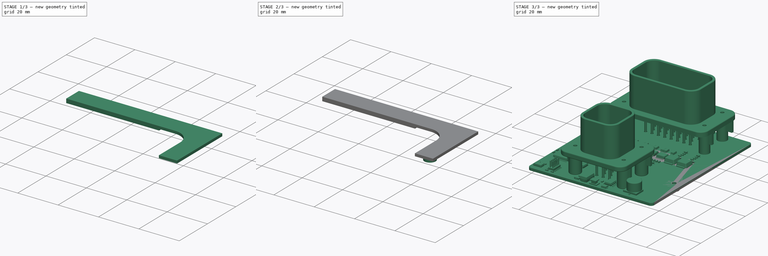
[diagram: build sequence overview — one tinted view per stage of 3, left to right]
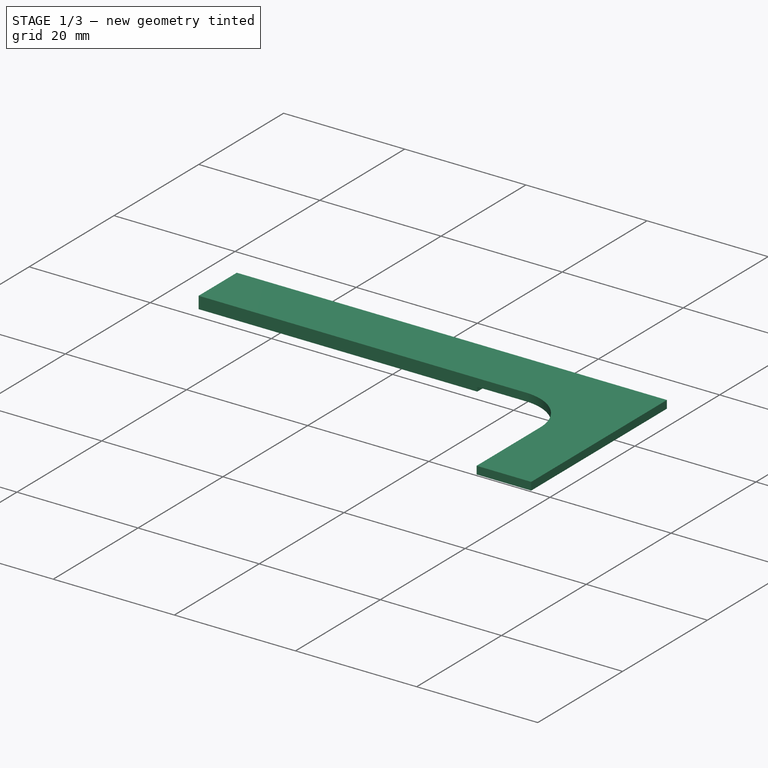
[diagram: stage 1 of 3 — iso view after this stage's code; geometry added in this stage tinted green]
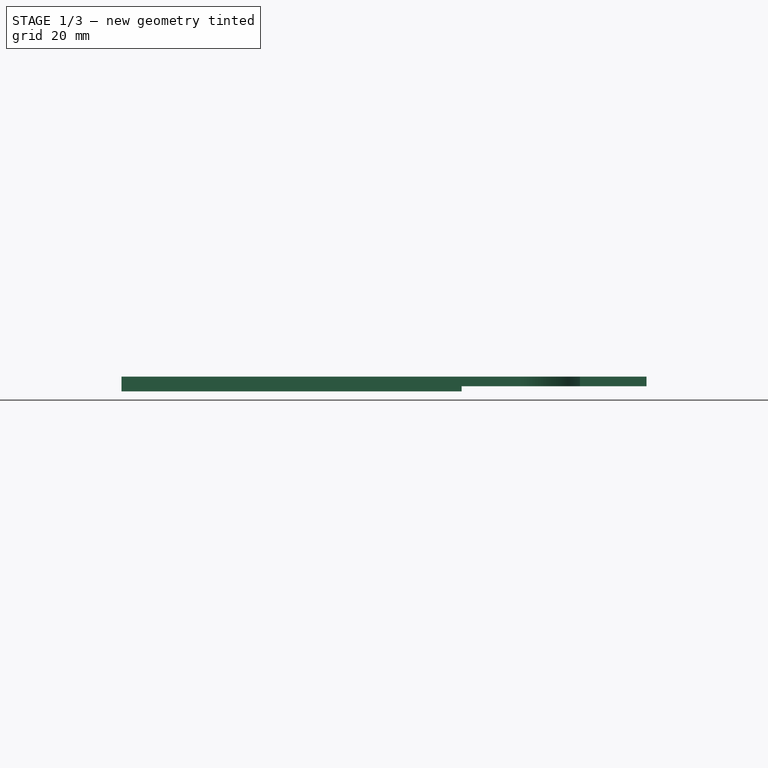
[diagram: stage 1 of 3 — front view after this stage's code; geometry added in this stage tinted green]
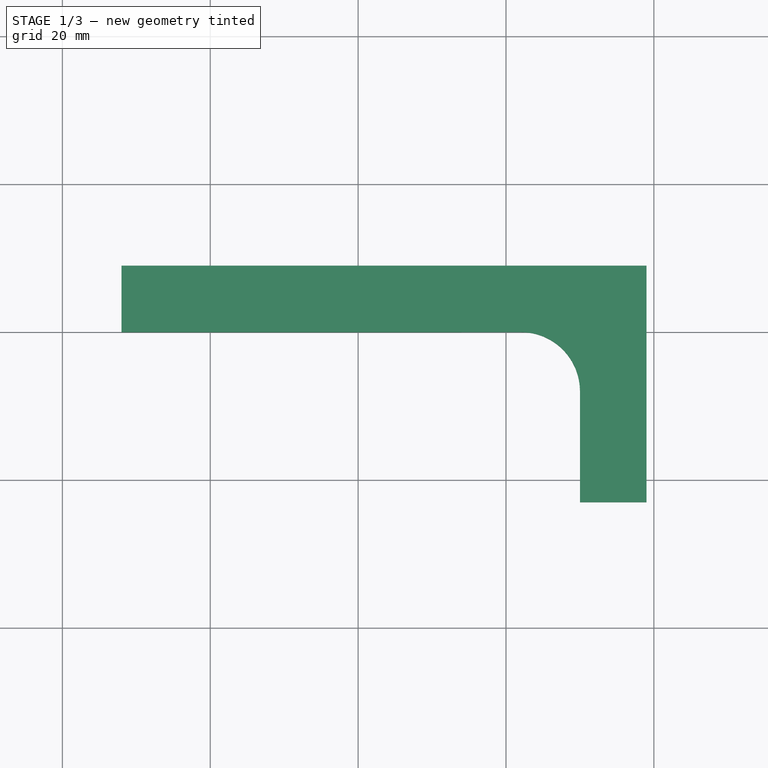
[diagram: stage 1 of 3 — top view after this stage's code; geometry added in this stage tinted green]
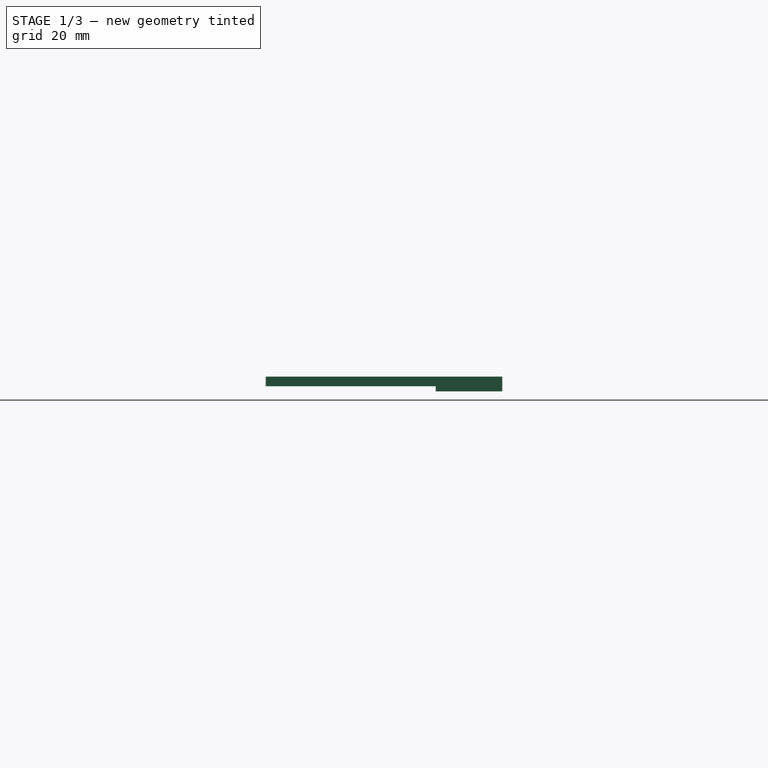
[diagram: stage 1 of 3 — right view after this stage's code; geometry added in this stage tinted green]
FCSTD DOCUMENT  (FreeCAD 0.17R13509 (Git))
Label: ccu_heatsink
License: All rights reserved
LicenseURL: http://en.wikipedia.org/wiki/All_rights_reserved
objects: Drawing::FeatureViewPython×16, Sketcher::SketchObject×4, Drawing::FeatureViewPart×4, PartDesign::Pad×2, PartDesign::Pocket×2, Part::FeaturePython×1, PartDesign::Body×1, Drawing::FeaturePage×1
note: 14 computed .brp shape members not serialized (recipe doc carries the construction recipe); baked Part::Feature solids carry a one-line shape summary decoded from their .brp

FEATURE [Sketcher::SketchObject] Sketch
  MapMode = 5
  Support = -> [XY_Plane]
  sketch-geometry (7):
    g0: LineSegment StartX=-32 StartY=0 StartZ=0 EndX=-32 EndY=9 EndZ=0
    g1: LineSegment StartX=-32 StartY=9 StartZ=0 EndX=39 EndY=9 EndZ=0
    g2: LineSegment StartX=39 StartY=9 StartZ=0 EndX=39 EndY=-23 EndZ=0
    g3: LineSegment StartX=39 StartY=-23 StartZ=0 EndX=30 EndY=-23 EndZ=0
    g4: LineSegment StartX=30 StartY=-23 StartZ=0 EndX=30 EndY=-8 EndZ=0
    g5: ArcOfCircle CenterX=22 CenterY=-8 CenterZ=0 NormalX=0 NormalY=0 NormalZ=1 AngleXU=0 Radius=8 StartAngle=0 EndAngle=1.5708
    g6: LineSegment StartX=22 StartY=0 StartZ=0 EndX=-32 EndY=0 EndZ=0
  constraints (20):
    c: PointOnObject(g0,g-1)
    c: Vertical(g0)
    c: Coincident(g0,g1)
    c: Horizontal(g1)
    c: Coincident(g1,g2)
    c: Vertical(g2)
    c: Coincident(g2,g3)
    c: Horizontal(g3)
    c: Coincident(g3,g4)
    c: Vertical(g4)
    c: Tangent(g4,g5) = -1.5708
    c: PointOnObject(g5,g-1)
    c: Coincident(g6,g0)
    c: DistanceX(g3,g3) = 9
    c: DistanceX(g-1,g2) = 39
    c: DistanceY(g2,g-1) = 23
    c: Radius(g5) = 8
    c: DistanceY(g0,g0) = 9
    c: DistanceX(g0,g-1) = 32
    c: Tangent(g5,g6) = -1.5708
FEATURE [PartDesign::Pad] Pad
  Length = 2
  Length2 = 100
  Profile = -> Sketch
  Reversed = true
  Type = 0
FEATURE [Sketcher::SketchObject] Sketch001
  ExternalGeometry = -> [Pad]
  MapMode = 5
  Placement = pos=(0,0,-2) rot=(1,0,0;3.14159rad)
  Support = -> [Pad]
  sketch-geometry (7):
    g0: LineSegment StartX=14 StartY=0 StartZ=0 EndX=14 EndY=-9 EndZ=0
    g1: LineSegment StartX=14 StartY=-9 StartZ=0 EndX=39 EndY=-9 EndZ=0
    g2: LineSegment StartX=39 StartY=-9 StartZ=0 EndX=39 EndY=23 EndZ=0
    g3: LineSegment StartX=39 StartY=23 StartZ=0 EndX=30 EndY=23 EndZ=0
    g4: LineSegment StartX=30 StartY=23 StartZ=0 EndX=30 EndY=8 EndZ=0
    g5: ArcOfCircle CenterX=22 CenterY=8 CenterZ=0 NormalX=0 NormalY=0 NormalZ=1 AngleXU=0 Radius=8 StartAngle=4.71239 EndAngle=6.28319
    g6: LineSegment StartX=22 StartY=0 StartZ=0 EndX=14 EndY=0 EndZ=0
  constraints (18):
    c: PointOnObject(g0,g-1)
    c: PointOnObject(g0,g-4)
    c: Vertical(g0)
    c: Coincident(g0,g1)
    c: Coincident(g1,g-4)
    c: Coincident(g1,g2)
    c: Vertical(g2)
    c: Coincident(g2,g3)
    c: Horizontal(g3)
    c: Coincident(g3,g4)
    c: Coincident(g4,g-3)
    c: Vertical(g4)
    c: Tangent(g4,g5) = 1.5708
    c: Coincident(g6,g0)
    c: Coincident(g3,g-5)
    c: Tangent(g5,g6) = 1.5708
    c: DistanceX(g0,g1) = 25
    c: Horizontal(g6)
FEATURE [PartDesign::Pocket] Pocket
  BaseFeature = -> Pad
  Length = 0.7
  Length2 = 100
  Profile = -> Sketch001
  Type = 0
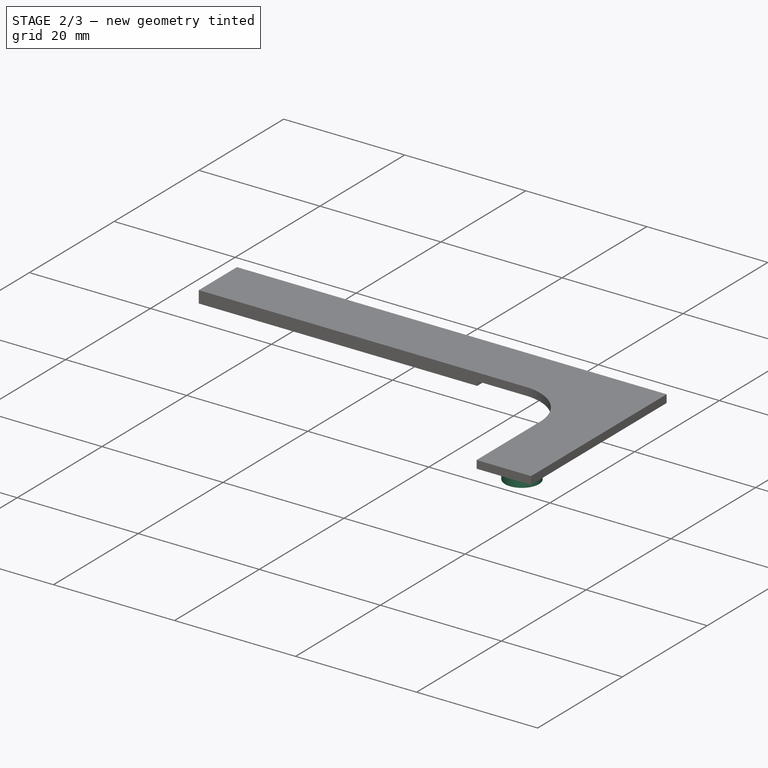
[diagram: stage 2 of 3 — iso view after this stage's code; geometry added in this stage tinted green]
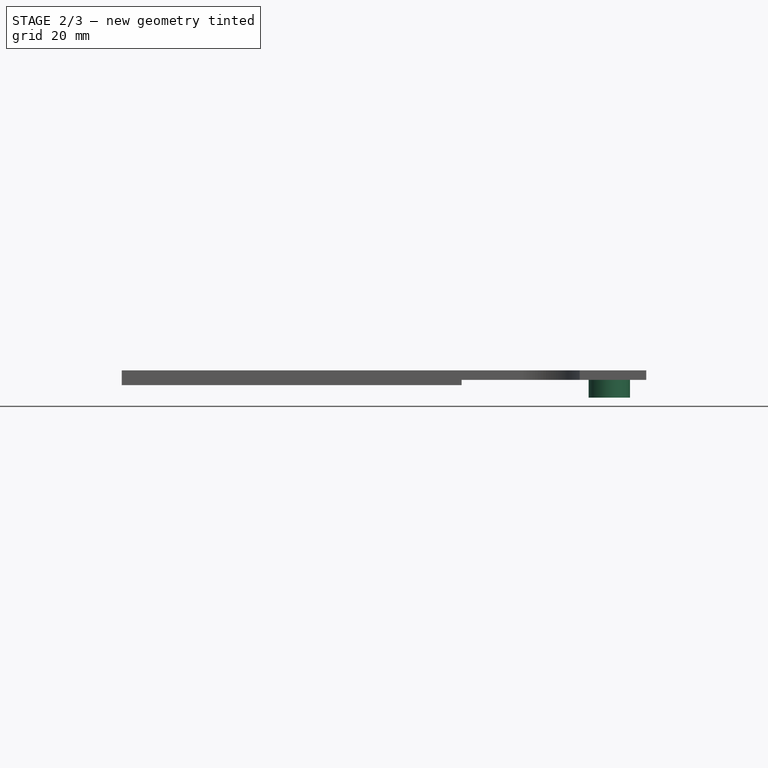
[diagram: stage 2 of 3 — front view after this stage's code; geometry added in this stage tinted green]
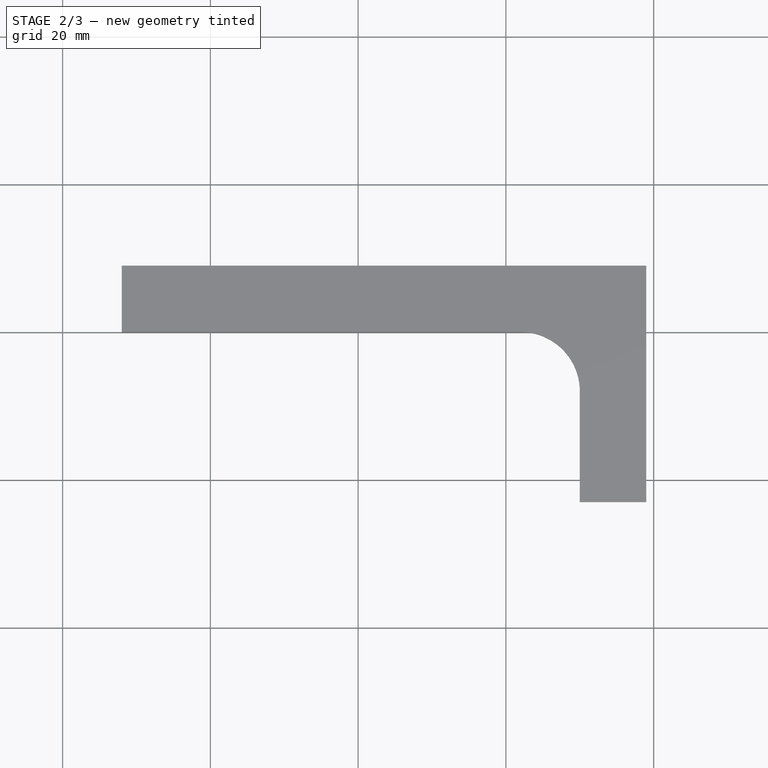
[diagram: stage 2 of 3 — top view after this stage's code; geometry added in this stage tinted green]
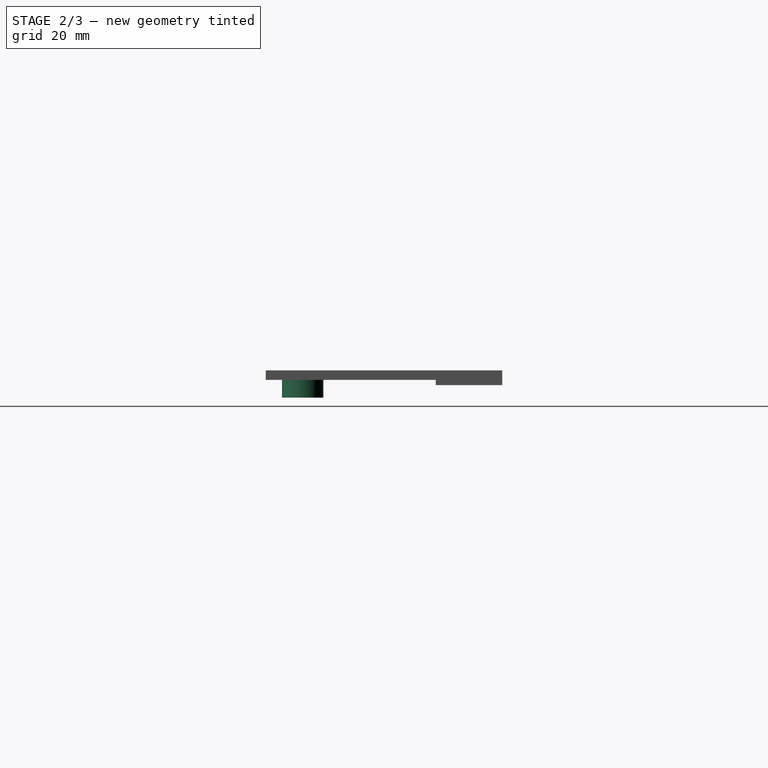
[diagram: stage 2 of 3 — right view after this stage's code; geometry added in this stage tinted green]
FEATURE [Sketcher::SketchObject] Sketch002
  MapMode = 5
  Placement = pos=(0,0,-1.3) rot=(1,0,0;3.14159rad)
  Support = -> [Pocket]
  sketch-geometry (1):
    g0: Circle CenterX=34 CenterY=18 CenterZ=0 NormalX=0 NormalY=0 NormalZ=1 AngleXU=0 Radius=2.8
  constraints (3):
    c: DistanceY(g-1,g0) = 18
    c: DistanceX(g-1,g0) = 34
    c: Radius(g0) = 2.8
FEATURE [PartDesign::Pad] Pad001
  BaseFeature = -> Pocket
  Length = 2.4
  Length2 = 100
  Profile = -> Sketch002
  Type = 0
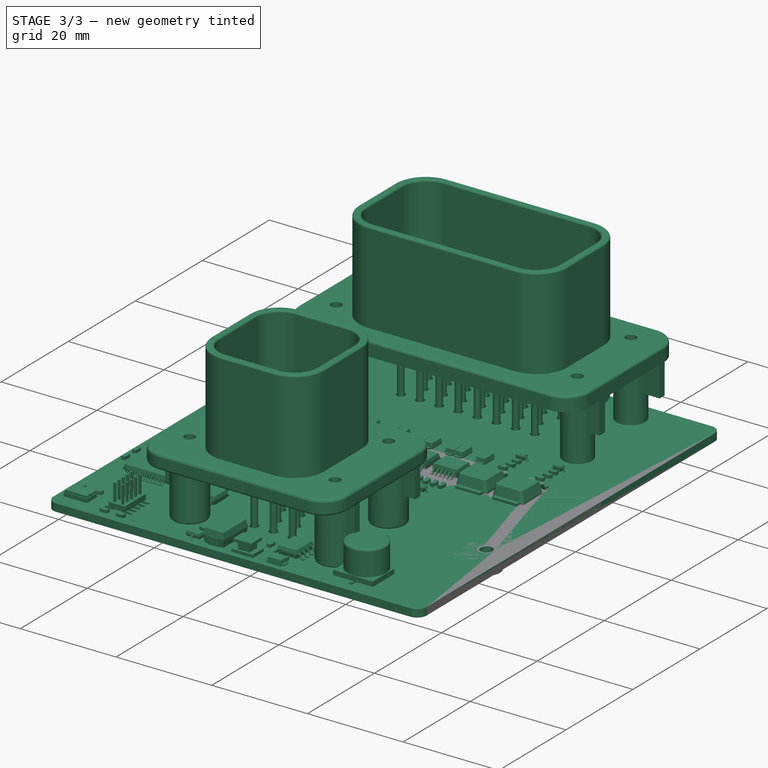
[diagram: stage 3 of 3 — iso view after this stage's code; geometry added in this stage tinted green]
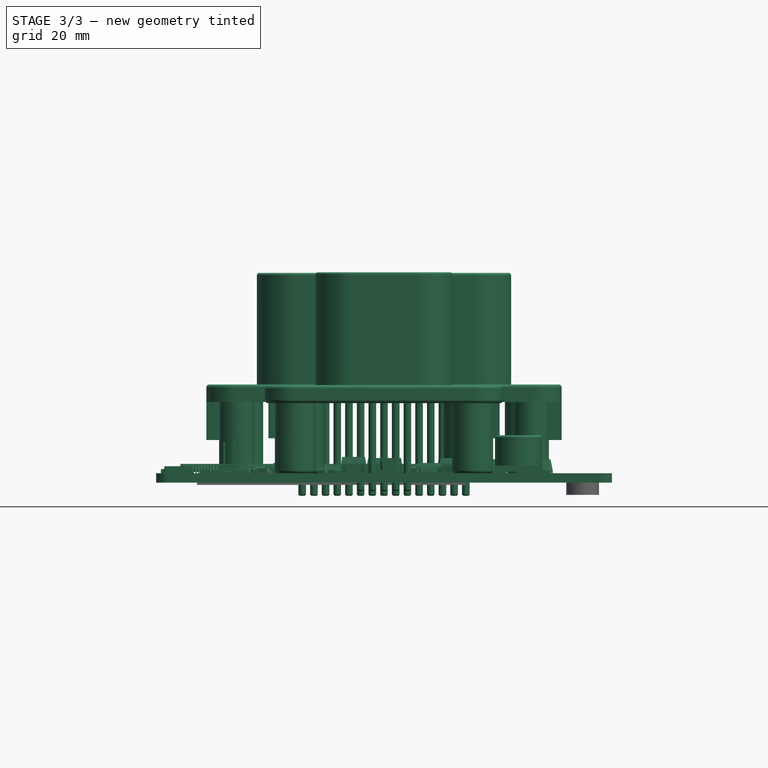
[diagram: stage 3 of 3 — front view after this stage's code; geometry added in this stage tinted green]
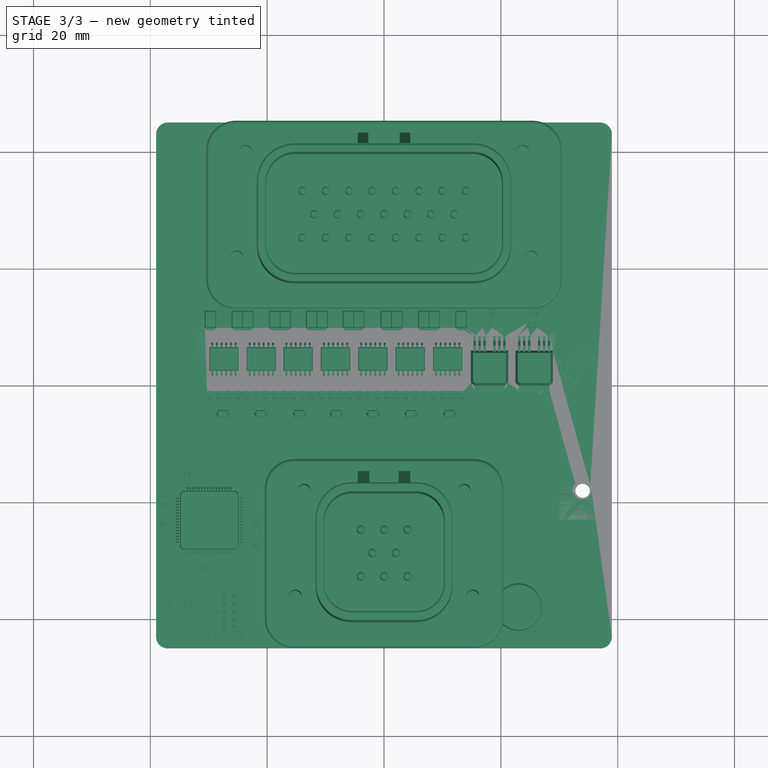
[diagram: stage 3 of 3 — top view after this stage's code; geometry added in this stage tinted green]
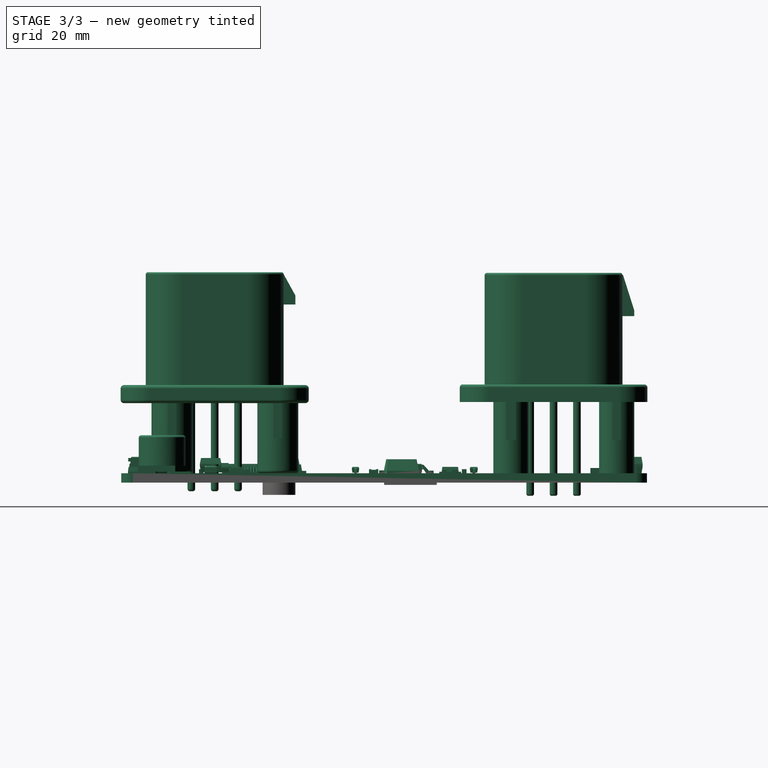
[diagram: stage 3 of 3 — right view after this stage's code; geometry added in this stage tinted green]
FEATURE [Part::FeaturePython] ccu_01  # a2plus imported part (geometry in sourceFile) (typed FeaturePython)
  fixedPosition = true
  sourceFile = <userpath>/uw/project/ccu/hw/ccu.FCStd
  timeLastImport = 1.54201e+09
  updateColors = true
FEATURE [Sketcher::SketchObject] Sketch003
  ExternalGeometry = -> [Pad001]
  MapMode = 5
  Placement = pos=(0,0,-3.7) rot=(1,0,0;3.14159rad)
  Support = -> [Pad001]
  sketch-geometry (1):
    g0: Circle CenterX=34 CenterY=18 CenterZ=0 NormalX=0 NormalY=0 NormalZ=1 AngleXU=0 Radius=1.25
  constraints (2):
    c: Coincident(g0,g-3)
    c: Radius(g0) = 1.25
FEATURE [PartDesign::Pocket] Pocket001
  BaseFeature = -> Pad001
  Length = 5
  Length2 = 100
  Profile = -> Sketch003
  Type = 1
FEATURE [PartDesign::Body] Body
  Group = -> [Sketch,Pad,Sketch001,Pocket,Sketch002,Pad001,Sketch003,Pocket001]
  Origin = -> Origin
  Placement = pos=(0,0,3.8) rot=(0,0,1;0rad)
  Tip = -> Pocket001
FEATURE [Drawing::FeatureViewPart] Ortho  label="Ortho_0_0"
  Direction = (1,0,0)
  HiddenWidth = 0.15
  LineWidth = 0.35
  Rotation = -90
  Scale = 2
  ShowHiddenLines = false
  ShowSmoothLines = false
  Source = -> Pocket001
  Tolerance = 0.05
  ViewResult = <g id="Ortho_0_0"\n   transform="rotate(-90,120.667,32.5333) translate(120.667,32.5333) scale(2,2)"\n  >\n<g   fill="none"\n   stroke="rgb(0, 0, 0)"\n   stroke-linecap="butt"\n   stroke-linejoin="miter"\n   stroke-width="0.175000"\n   transform="scale(1,-1)"\n  >\n<path id= "1" d=" M -3.7 15.2 L -1.3 15.2 " />\n<path id= "2" d=" M -3.7 20.8 L -1.3 20.8 " />\n</g>\n<g   fill="none"\n   stroke="rgb(0, 0, 0)"\n   stroke-linecap="butt"\n   stroke-linejoin="miter"\n   stroke-width="0.175000"\n   transform="scale(1,-1)"\n  >\n<path id= "1" d=" M -2 0 L -1.3 0 " />\n<path id= "2" d=" M 0 -9 L -1.3 -9 " />\n<path id= "3" d=" M -2 -9 L -1.3 -9 " />\n<path id= "4" d=" M 0 -9 L 0 23 " />\n<path id= "5" d=" M -2 0 L -2 -9 " />\n<path id= "6" d=" M -1.3 -9 L -1.3 23 " />\n<path id= "7" d=" M 0 23 L -1.3 23 " />\n<path d="M-3.7,18 Q-3.7,18.1568 -3.7,18.3135  Q-3.7,18.6253 -3.7,18.9248  Q-3.7,19.0698 -3.7,19.2149  Q-3.7,19.3523 -3.7,19.4897  Q-3.7,19.6177 -3.7,19.7458  Q-3.7,19.8628 -3.7,19.9799  Q-3.7,20.0845 -3.7,20.1891  Q-3.7,20.28 -3.7,20.3708  Q-3.7,20.4468 -3.7,20.5227  Q-3.7,20.5828 -3.7,20.6429  Q-3.7,20.6863 -3.7,20.7298  Q-3.7,20.7561 -3.7,20.7824  Q-3.7,20.7912 -3.7,20.8 " /><path d="M-3.7,15.2 Q-3.7,15.2088 -3.7,15.2176  Q-3.7,15.2439 -3.7,15.2702  Q-3.7,15.3137 -3.7,15.3571  Q-3.7,15.4172 -3.7,15.4773  Q-3.7,15.5532 -3.7,15.6292  Q-3.7,15.72 -3.7,15.8109  Q-3.7,15.9155 -3.7,16.0201  Q-3.7,16.1372 -3.7,16.2542  Q-3.7,16.3823 -3.7,16.5103  Q-3.7,16.6477 -3.7,16.7851  Q-3.7,16.9302 -3.7,17.0752  Q-3.7,17.2261 -3.7,17.3769  Q-3.7,17.6854 -3.7,18 " /></g>\n</g>
  Visible = false
  X = 120.667
  Y = 32.5333
FEATURE [Drawing::FeatureViewPart] Ortho001  label="Ortho_1_0"
  Direction = (0,1,0)
  HiddenWidth = 0.15
  LineWidth = 0.35
  Rotation = -90
  Scale = 2
  ShowHiddenLines = false
  ShowSmoothLines = false
  Source = -> Pocket001
  Tolerance = 0.05
  ViewResult = <g id="Ortho_1_0"\n   transform="rotate(-90,281.333,32.5333) translate(281.333,32.5333) scale(2,2)"\n  >\n<g   fill="none"\n   stroke="rgb(0, 0, 0)"\n   stroke-linecap="butt"\n   stroke-linejoin="miter"\n   stroke-width="0.175000"\n   transform="scale(1,-1)"\n  >\n<path id= "1" d=" M -3.7 31.2 L -1.3 31.2 " />\n</g>\n<g   fill="none"\n   stroke="rgb(0, 0, 0)"\n   stroke-linecap="butt"\n   stroke-linejoin="miter"\n   stroke-width="0.175000"\n   transform="scale(1,-1)"\n  >\n<path id= "1" d=" M 0 -32 L -2 -32 " />\n<path id= "2" d=" M 0 -32 L 0 39 " />\n<path id= "3" d=" M 0 39 L -1.3 39 " />\n<path id= "4" d=" M -1.3 14 L -1.3 39 " />\n<path id= "5" d=" M -2 14 L -1.3 14 " />\n<path id= "6" d=" M -2 -32 L -2 14 " />\n<path id= "7" d=" M -1.3 36.8 L -3.7 36.8 " />\n<path d="M-3.7,31.2 L-3.7,31.2702  L-3.7,31.4773  L-3.7,31.8109  L-3.7,32.2542  L-3.7,32.7851  L-3.7,33.3769  L-3.7,34  L-3.7,34.6231  L-3.7,35.2149  L-3.7,35.7458  L-3.7,36.1891  L-3.7,36.5227  L-3.7,36.7298  L-3.7,36.8 " /></g>\n</g>
  Visible = false
  X = 281.333
  Y = 32.5333
FEATURE [Drawing::FeatureViewPart] Ortho002  label="Ortho_0_-1"
  Direction = (0,0,-1)
  HiddenWidth = 0.15
  LineWidth = 0.35
  Rotation = 90
  Scale = 2
  ShowHiddenLines = false
  ShowSmoothLines = false
  Source = -> Pocket001
  Tolerance = 0.05
  ViewResult = <g id="Ortho_0_-1"\n   transform="rotate(90,120.667,140.467) translate(120.667,140.467) scale(2,2)"\n  >\n<g   fill="none"\n   stroke="rgb(0, 0, 0)"\n   stroke-linecap="butt"\n   stroke-linejoin="miter"\n   stroke-width="0.175000"\n   transform="scale(1,-1)"\n  >\n<path id= "1" d=" M 32 0 L 32 9 " />\n<path id= "2" d=" M -14 -1.21055e-14 L 32 0 " />\n<path id= "3" d=" M -22 0 L -14 0 " />\n<path id= "4" d=" M -14 9 L -39 9 " />\n<path id= "5" d=" M 32 9 L -14 9 " />\n<path id= "6" d=" M -14 0 L -14 9 " />\n<path id= "7" d=" M -14 0 L -14 9 " />\n<path d="M-22 0 A8 8 0 0 1 -30 -8" /><path id= "9" d=" M -39 9 L -39 -23 " />\n<path id= "10" d=" M -30 -23 L -30 -8 " />\n<path id= "11" d=" M -39 -23 L -30 -23 " />\n<circle cx ="-34" cy ="-18" r ="2.8" /><circle cx ="-34" cy ="-18" r ="1.25" /><circle cx ="-34" cy ="-18" r ="2.8" /></g>\n</g>
  Visible = false
  X = 120.667
  Y = 140.467
FEATURE [Drawing::FeatureViewPart] Ortho003  label="Ortho_1_-1"
  Direction = (0.57735,0.57735,-0.57735)
  HiddenWidth = 0.15
  LineWidth = 0.35
  Rotation = 60
  Scale = 2
  ShowHiddenLines = false
  ShowSmoothLines = false
  Source = -> Pocket001
  Tolerance = 0.05
  ViewResult = <blob: 2373 chars omitted>
  Visible = false
  X = 289.183
  Y = 127.588
FEATURE [Drawing::FeatureViewPython] rad001  # drawing view (typed FeaturePython)
  Rotation = 0
  ViewResult = <g>  <circle cx ="104.667000" cy ="96.467000" r="0.250000" stroke="none" fill="rgb(0,0,255)" /> \n<line x1="117.482012" y1="78.812384" x2="104.667000" y2="96.467000" style="stroke:rgb(0,0,255);stroke-width:0.50" />\n<polygon points="114.065891,83.518608 111.494324,85.359001 111.716168,86.755706 113.112873,86.533862" style="fill:rgb(0,0,255);stroke:rgb(0,0,255);stroke-width:0" />\n<line x1="117.482012" y1="78.812384" x2="124.847656" y2="78.812384" style="stroke:rgb(0,0,255);stroke-width:0.50" />\n<text x="121.164834" y="76.812384" font-family="inherit" font-size="3.6" fill="rgb(0,0,255)" text-anchor="middle" transform="rotate(0.000000 121.164834,76.812384)" >R8</text> </g>
  Visible = false
  X = 0
  Y = 0
  arrowL1 = 3
  arrowL2 = 1
  arrowW = 2
  arrow_scheme = 0
  autoPlaceOffset = 2
  autoPlaceText = true
  centerPointDia = 0.5
  click1_x = 117.482
  click1_y = 78.8124
  click2_x = 124.848
  click2_y = 79.5489
  click3_x = 124.848
  click3_y = 79.5489
  comma_decimal_place = false
  lineColor = rgb(0,0,255)
  strokeWidth = 0.5
  textFormat_radial = R%(value)3.3f
  textRenderer_color = rgb(0,0,255)
  textRenderer_family = inherit
  textRenderer_size = 3.6
  unit_custom_scale = 1
  unit_scheme = 0
FEATURE [Drawing::FeatureViewPython] rad002  # drawing view (typed FeaturePython)
  Rotation = 0
  ViewResult = <g>  <circle cx ="84.667000" cy ="72.467000" r="0.250000" stroke="none" fill="rgb(0,0,255)" /> \n<line x1="92.177106" y1="67.489981" x2="84.667000" y2="72.467000" style="stroke:rgb(0,0,255);stroke-width:0.50" />\n<polygon points="89.334989,69.373479 86.281866,70.197153 86.000711,71.583137 87.386695,71.864292" style="fill:rgb(0,0,255);stroke:rgb(0,0,255);stroke-width:0" />\n<line x1="92.177106" y1="67.489981" x2="103.543839" y2="67.489981" style="stroke:rgb(0,0,255);stroke-width:0.50" />\n<text x="97.860472" y="65.489981" font-family="inherit" font-size="3.6" fill="rgb(0,0,255)" text-anchor="middle" transform="rotate(0.000000 97.860472,65.489981)" >R2.8</text> </g>
  Visible = false
  X = 0
  Y = 0
  arrowL1 = 3
  arrowL2 = 1
  arrowW = 2
  arrow_scheme = 0
  autoPlaceOffset = 2
  autoPlaceText = true
  centerPointDia = 0.5
  click1_x = 92.1771
  click1_y = 67.49
  click2_x = 103.544
  click2_y = 67.49
  click3_x = 103.544
  click3_y = 67.49
  comma_decimal_place = false
  lineColor = rgb(0,0,255)
  strokeWidth = 0.5
  textFormat_radial = R%(value)3.3f
  textRenderer_color = rgb(0,0,255)
  textRenderer_family = inherit
  textRenderer_size = 3.6
  unit_custom_scale = 1
  unit_scheme = 0
FEATURE [Drawing::FeatureViewPython] rad003  # drawing view (typed FeaturePython)
  Rotation = 0
  ViewResult = <g>  <circle cx ="84.667000" cy ="72.467000" r="0.250000" stroke="none" fill="rgb(0,0,255)" /> \n<line x1="91.644290" y1="78.146294" x2="84.667000" y2="72.467000" style="stroke:rgb(0,0,255);stroke-width:0.50" />\n<polygon points="86.605891,74.045196 88.301281,76.714587 89.708116,76.570309 89.563838,75.163475" style="fill:rgb(0,0,255);stroke:rgb(0,0,255);stroke-width:0" />\n<line x1="91.644290" y1="78.146294" x2="103.188629" y2="78.146294" style="stroke:rgb(0,0,255);stroke-width:0.50" />\n<text x="97.416459" y="76.146294" font-family="inherit" font-size="3.6" fill="rgb(0,0,255)" text-anchor="middle" transform="rotate(0.000000 97.416459,76.146294)" >R1.25</text> </g>
  Visible = false
  X = 0
  Y = 0
  arrowL1 = 3
  arrowL2 = 1
  arrowW = 2
  arrow_scheme = 0
  autoPlaceOffset = 2
  autoPlaceText = true
  centerPointDia = 0.5
  click1_x = 91.6443
  click1_y = 78.1463
  click2_x = 103.189
  click2_y = 78.5015
  click3_x = 103.189
  click3_y = 78.5015
  comma_decimal_place = false
  lineColor = rgb(0,0,255)
  strokeWidth = 0.5
  textFormat_radial = R%(value)3.3f
  textRenderer_color = rgb(0,0,255)
  textRenderer_family = inherit
  textRenderer_size = 3.6
  unit_custom_scale = 1
  unit_scheme = 0
FEATURE [Drawing::FeatureViewPython] dim001  # drawing view (typed FeaturePython)
  Rotation = 0
  ViewResult = <g> \n  <line x1="74.667000" y1="82.467000" x2="74.667000" y2="93.177106" style="stroke:rgb(0,0,255);stroke-width:0.50" />\n<line x1="84.667000" y1="74.467000" x2="84.667000" y2="93.177106" style="stroke:rgb(0,0,255);stroke-width:0.50" />\n<line x1="74.667000" y1="92.177106" x2="84.667000" y2="92.177106" style="stroke:rgb(0,0,255);stroke-width:0.50" /> \n  <polygon points="84.667000,92.177106 87.667000,93.177106 88.667000,92.177106 87.667000,91.177106" style="fill:rgb(0,0,255);stroke:rgb(0,0,255);stroke-width:0" /><polygon points="74.667000,92.177106 71.667000,91.177106 70.667000,92.177106 71.667000,93.177106" style="fill:rgb(0,0,255);stroke:rgb(0,0,255);stroke-width:0" /> \n  <text x="79.667000" y="90.177106" font-family="inherit" font-size="3.6" fill="rgb(0,0,255)" text-anchor="middle" transform="rotate(0.000000 79.667000,90.177106)" >5</text> </g>
  Visible = false
  X = 0
  Y = 0
  arrowL1 = 3
  arrowL2 = 1
  arrowW = 2
  arrow_scheme = 0
  autoPlaceOffset = 2
  autoPlaceText = true
  click1_x = 82.4088
  click1_y = 92.1771
  click2_x = 82.4088
  click2_y = 92.1771
  comma_decimal_place = false
  dimension_line_overshoot = 1
  gap_datum_points = 2
  halfDimension_linear = false
  lineColor = rgb(0,0,255)
  strokeWidth = 0.5
  textFormat_linear = %(value)3.3f
  textRenderer_color = rgb(0,0,255)
  textRenderer_family = inherit
  textRenderer_size = 3.6
  unit_custom_scale = 1
  unit_scheme = 0
FEATURE [Drawing::FeatureViewPython] dim002  # drawing view (typed FeaturePython)
  Rotation = 0
  ViewResult = <g> \n  <line x1="72.667000" y1="80.467000" x2="60.806614" y2="80.467000" style="stroke:rgb(0,0,255);stroke-width:0.50" />\n<line x1="82.667000" y1="72.467000" x2="60.806614" y2="72.467000" style="stroke:rgb(0,0,255);stroke-width:0.50" />\n<line x1="61.806614" y1="80.467000" x2="61.806614" y2="72.467000" style="stroke:rgb(0,0,255);stroke-width:0.50" /> \n  <polygon points="61.806614,72.467000 62.806614,69.467000 61.806614,68.467000 60.806614,69.467000" style="fill:rgb(0,0,255);stroke:rgb(0,0,255);stroke-width:0" /><polygon points="61.806614,80.467000 60.806614,83.467000 61.806614,84.467000 62.806614,83.467000" style="fill:rgb(0,0,255);stroke:rgb(0,0,255);stroke-width:0" /> \n  <text x="59.806614" y="76.467000" font-family="inherit" font-size="3.6" fill="rgb(0,0,255)" text-anchor="middle" transform="rotate(-90.000000 59.806614,76.467000)" >4</text> </g>
  Visible = false
  X = 0
  Y = 0
  arrowL1 = 3
  arrowL2 = 1
  arrowW = 2
  arrow_scheme = 0
  autoPlaceOffset = 2
  autoPlaceText = true
  click1_x = 61.8066
  click1_y = 75.127
  click2_x = 61.8066
  click2_y = 75.127
  comma_decimal_place = false
  dimension_line_overshoot = 1
  gap_datum_points = 2
  halfDimension_linear = false
  lineColor = rgb(0,0,255)
  strokeWidth = 0.5
  textFormat_linear = %(value)3.3f
  textRenderer_color = rgb(0,0,255)
  textRenderer_family = inherit
  textRenderer_size = 3.6
  unit_custom_scale = 1
  unit_scheme = 0
FEATURE [Drawing::FeatureViewPython] dim003  # drawing view (typed FeaturePython)
  Rotation = 0
  ViewResult = <g> \n  <line x1="72.667000" y1="62.467000" x2="51.038327" y2="62.467000" style="stroke:rgb(0,0,255);stroke-width:0.50" />\n<line x1="72.667000" y1="80.467000" x2="51.038327" y2="80.467000" style="stroke:rgb(0,0,255);stroke-width:0.50" />\n<line x1="52.038327" y1="62.467000" x2="52.038327" y2="80.467000" style="stroke:rgb(0,0,255);stroke-width:0.50" /> \n  <polygon points="52.038327,80.467000 53.038327,77.467000 52.038327,76.467000 51.038327,77.467000" style="fill:rgb(0,0,255);stroke:rgb(0,0,255);stroke-width:0" /><polygon points="52.038327,62.467000 51.038327,65.467000 52.038327,66.467000 53.038327,65.467000" style="fill:rgb(0,0,255);stroke:rgb(0,0,255);stroke-width:0" /> \n  <text x="50.038327" y="71.467000" font-family="inherit" font-size="3.6" fill="rgb(0,0,255)" text-anchor="middle" transform="rotate(-90.000000 50.038327,71.467000)" >9</text> </g>
  Visible = false
  X = 0
  Y = 0
  arrowL1 = 3
  arrowL2 = 1
  arrowW = 2
  arrow_scheme = 0
  autoPlaceOffset = 2
  autoPlaceText = true
  click1_x = 52.0383
  click1_y = 70.6869
  click2_x = 52.0383
  click2_y = 70.6869
  comma_decimal_place = false
  dimension_line_overshoot = 1
  gap_datum_points = 2
  halfDimension_linear = false
  lineColor = rgb(0,0,255)
  strokeWidth = 0.5
  textFormat_linear = %(value)3.3f
  textRenderer_color = rgb(0,0,255)
  textRenderer_family = inherit
  textRenderer_size = 3.6
  unit_custom_scale = 1
  unit_scheme = 0
FEATURE [Drawing::FeatureViewPython] dim004  # drawing view (typed FeaturePython)
  Rotation = 0
  ViewResult = <g> \n  <line x1="138.667000" y1="60.467000" x2="138.667000" y2="54.412826" style="stroke:rgb(0,0,255);stroke-width:0.50" />\n<line x1="74.667000" y1="60.467000" x2="74.667000" y2="54.412826" style="stroke:rgb(0,0,255);stroke-width:0.50" />\n<line x1="138.667000" y1="55.412826" x2="74.667000" y2="55.412826" style="stroke:rgb(0,0,255);stroke-width:0.50" /> \n  <polygon points="74.667000,55.412826 77.667000,56.412826 78.667000,55.412826 77.667000,54.412826" style="fill:rgb(0,0,255);stroke:rgb(0,0,255);stroke-width:0" /><polygon points="138.667000,55.412826 135.667000,54.412826 134.667000,55.412826 135.667000,56.412826" style="fill:rgb(0,0,255);stroke:rgb(0,0,255);stroke-width:0" /> \n  <text x="106.667000" y="53.412826" font-family="inherit" font-size="3.6" fill="rgb(0,0,255)" text-anchor="middle" transform="rotate(0.000000 106.667000,53.412826)" >32</text> </g>
  Visible = false
  X = 0
  Y = 0
  arrowL1 = 3
  arrowL2 = 1
  arrowW = 2
  arrow_scheme = 0
  autoPlaceOffset = 2
  autoPlaceText = true
  click1_x = 114.733
  click1_y = 55.4128
  click2_x = 114.733
  click2_y = 55.4128
  comma_decimal_place = false
  dimension_line_overshoot = 1
  gap_datum_points = 2
  halfDimension_linear = false
  lineColor = rgb(0,0,255)
  strokeWidth = 0.5
  textFormat_linear = %(value)3.3f
  textRenderer_color = rgb(0,0,255)
  textRenderer_family = inherit
  textRenderer_size = 3.6
  unit_custom_scale = 1
  unit_scheme = 0
FEATURE [Drawing::FeatureViewPython] dim005  # drawing view (typed FeaturePython)
  Rotation = 0
  ViewResult = <g> \n  <line x1="140.667000" y1="204.467000" x2="153.127824" y2="204.467000" style="stroke:rgb(0,0,255);stroke-width:0.50" />\n<line x1="140.667000" y1="62.467000" x2="153.127824" y2="62.467000" style="stroke:rgb(0,0,255);stroke-width:0.50" />\n<line x1="152.127824" y1="204.467000" x2="152.127824" y2="62.467000" style="stroke:rgb(0,0,255);stroke-width:0.50" /> \n  <polygon points="152.127824,62.467000 151.127824,65.467000 152.127824,66.467000 153.127824,65.467000" style="fill:rgb(0,0,255);stroke:rgb(0,0,255);stroke-width:0" /><polygon points="152.127824,204.467000 153.127824,201.467000 152.127824,200.467000 151.127824,201.467000" style="fill:rgb(0,0,255);stroke:rgb(0,0,255);stroke-width:0" /> \n  <text x="150.127824" y="133.467000" font-family="inherit" font-size="3.6" fill="rgb(0,0,255)" text-anchor="middle" transform="rotate(-90.000000 150.127824,133.467000)" >71</text> </g>
  Visible = false
  X = 0
  Y = 0
  arrowL1 = 3
  arrowL2 = 1
  arrowW = 2
  arrow_scheme = 0
  autoPlaceOffset = 2
  autoPlaceText = true
  click1_x = 152.128
  click1_y = 68.3595
  click2_x = 152.128
  click2_y = 68.3595
  comma_decimal_place = false
  dimension_line_overshoot = 1
  gap_datum_points = 2
  halfDimension_linear = false
  lineColor = rgb(0,0,255)
  strokeWidth = 0.5
  textFormat_linear = %(value)3.3f
  textRenderer_color = rgb(0,0,255)
  textRenderer_family = inherit
  textRenderer_size = 3.6
  unit_custom_scale = 1
  unit_scheme = 0
FEATURE [Drawing::FeatureViewPython] dim006  # drawing view (typed FeaturePython)
  Rotation = 0
  ViewResult = <g> \n  <line x1="140.667000" y1="204.467000" x2="146.123781" y2="204.467000" style="stroke:rgb(0,0,255);stroke-width:0.50" />\n<line x1="140.667000" y1="112.467000" x2="146.123781" y2="112.467000" style="stroke:rgb(0,0,255);stroke-width:0.50" />\n<line x1="145.123781" y1="204.467000" x2="145.123781" y2="112.467000" style="stroke:rgb(0,0,255);stroke-width:0.50" /> \n  <polygon points="145.123781,112.467000 144.123781,115.467000 145.123781,116.467000 146.123781,115.467000" style="fill:rgb(0,0,255);stroke:rgb(0,0,255);stroke-width:0" /><polygon points="145.123781,204.467000 146.123781,201.467000 145.123781,200.467000 144.123781,201.467000" style="fill:rgb(0,0,255);stroke:rgb(0,0,255);stroke-width:0" /> \n  <text x="143.123781" y="158.467000" font-family="inherit" font-size="3.6" fill="rgb(0,0,255)" text-anchor="middle" transform="rotate(-90.000000 143.123781,158.467000)" >46</text> </g>
  Visible = false
  X = 0
  Y = 0
  arrowL1 = 3
  arrowL2 = 1
  arrowW = 2
  arrow_scheme = 0
  autoPlaceOffset = 2
  autoPlaceText = true
  click1_x = 145.124
  click1_y = 156.05
  click2_x = 145.124
  click2_y = 156.05
  comma_decimal_place = false
  dimension_line_overshoot = 1
  gap_datum_points = 2
  halfDimension_linear = false
  lineColor = rgb(0,0,255)
  strokeWidth = 0.5
  textFormat_linear = %(value)3.3f
  textRenderer_color = rgb(0,0,255)
  textRenderer_family = inherit
  textRenderer_size = 3.6
  unit_custom_scale = 1
  unit_scheme = 0
FEATURE [Drawing::FeatureViewPython] dim007  # drawing view (typed FeaturePython)
  Rotation = 0
  ViewResult = <g> \n  <line x1="120.667000" y1="206.467000" x2="120.667000" y2="216.164215" style="stroke:rgb(0,0,255);stroke-width:0.50" />\n<line x1="138.667000" y1="206.467000" x2="138.667000" y2="216.164215" style="stroke:rgb(0,0,255);stroke-width:0.50" />\n<line x1="120.667000" y1="215.164215" x2="138.667000" y2="215.164215" style="stroke:rgb(0,0,255);stroke-width:0.50" /> \n  <polygon points="138.667000,215.164215 135.667000,214.164215 134.667000,215.164215 135.667000,216.164215" style="fill:rgb(0,0,255);stroke:rgb(0,0,255);stroke-width:0" /><polygon points="120.667000,215.164215 123.667000,216.164215 124.667000,215.164215 123.667000,214.164215" style="fill:rgb(0,0,255);stroke:rgb(0,0,255);stroke-width:0" /> \n  <text x="129.667000" y="213.164215" font-family="inherit" font-size="3.6" fill="rgb(0,0,255)" text-anchor="middle" transform="rotate(0.000000 129.667000,213.164215)" >9</text> </g>
  Visible = false
  X = 0
  Y = 0
  arrowL1 = 3
  arrowL2 = 1
  arrowW = 2
  arrow_scheme = 0
  autoPlaceOffset = 2
  autoPlaceText = true
  click1_x = 131.396
  click1_y = 215.164
  click2_x = 131.396
  click2_y = 215.164
  comma_decimal_place = false
  dimension_line_overshoot = 1
  gap_datum_points = 2
  halfDimension_linear = false
  lineColor = rgb(0,0,255)
  strokeWidth = 0.5
  textFormat_linear = %(value)3.3f
  textRenderer_color = rgb(0,0,255)
  textRenderer_family = inherit
  textRenderer_size = 3.6
  unit_custom_scale = 1
  unit_scheme = 0
FEATURE [Drawing::FeatureViewPython] dim008  # drawing view (typed FeaturePython)
  Rotation = 0
  ViewResult = <g> \n  <line x1="72.667000" y1="32.533300" x2="69.857875" y2="32.533300" style="stroke:rgb(0,0,255);stroke-width:0.50" />\n<line x1="72.667000" y1="35.133300" x2="69.857875" y2="35.133300" style="stroke:rgb(0,0,255);stroke-width:0.50" />\n<line x1="70.857875" y1="32.533300" x2="70.857875" y2="35.133300" style="stroke:rgb(0,0,255);stroke-width:0.50" /> \n  <polygon points="70.857875,35.133300 69.857875,38.133300 70.857875,39.133300 71.857875,38.133300" style="fill:rgb(0,0,255);stroke:rgb(0,0,255);stroke-width:0" /><polygon points="70.857875,32.533300 71.857875,29.533300 70.857875,28.533300 69.857875,29.533300" style="fill:rgb(0,0,255);stroke:rgb(0,0,255);stroke-width:0" /> \n  <text x="68.577391" y="36.433436" font-family="inherit" font-size="3.6" fill="rgb(0,0,255)" text-anchor="inherit" transform="rotate(-90.000000 68.577391,36.433436)" >1.3</text> </g>
  Visible = false
  X = 0
  Y = 0
  arrowL1 = 3
  arrowL2 = 1
  arrowW = 2
  arrow_scheme = 0
  autoPlaceOffset = 2
  autoPlaceText = false
  click1_x = 70.8579
  click1_y = 34.7502
  click2_x = 68.5774
  click2_y = 36.4334
  comma_decimal_place = false
  dimension_line_overshoot = 1
  gap_datum_points = 2
  halfDimension_linear = false
  lineColor = rgb(0,0,255)
  strokeWidth = 0.5
  textFormat_linear = %(value)3.3f
  textRenderer_color = rgb(0,0,255)
  textRenderer_family = inherit
  textRenderer_size = 3.6
  unit_custom_scale = 1
  unit_scheme = 0
FEATURE [Drawing::FeatureViewPython] dim009  # drawing view (typed FeaturePython)
  Rotation = 0
  ViewResult = <g> \n  <line x1="92.267000" y1="39.933300" x2="96.400219" y2="39.933300" style="stroke:rgb(0,0,255);stroke-width:0.50" />\n<line x1="92.267000" y1="35.133300" x2="96.400219" y2="35.133300" style="stroke:rgb(0,0,255);stroke-width:0.50" />\n<line x1="95.400219" y1="39.933300" x2="95.400219" y2="35.133300" style="stroke:rgb(0,0,255);stroke-width:0.50" /> \n  <polygon points="95.400219,35.133300 96.400219,32.133300 95.400219,31.133300 94.400219,32.133300" style="fill:rgb(0,0,255);stroke:rgb(0,0,255);stroke-width:0" /><polygon points="95.400219,39.933300 94.400219,42.933300 95.400219,43.933300 96.400219,42.933300" style="fill:rgb(0,0,255);stroke:rgb(0,0,255);stroke-width:0" /> \n  <text x="100.015483" y="40.831511" font-family="inherit" font-size="3.6" fill="rgb(0,0,255)" text-anchor="inherit" transform="rotate(-90.000000 100.015483,40.831511)" >2.4</text> </g>
  Visible = false
  X = 0
  Y = 0
  arrowL1 = 3
  arrowL2 = 1
  arrowW = 2
  arrow_scheme = 0
  autoPlaceOffset = 2
  autoPlaceText = false
  click1_x = 95.4002
  click1_y = 38.1166
  click2_x = 100.015
  click2_y = 40.8315
  comma_decimal_place = false
  dimension_line_overshoot = 1
  gap_datum_points = 2
  halfDimension_linear = false
  lineColor = rgb(0,0,255)
  strokeWidth = 0.5
  textFormat_linear = %(value)3.3f
  textRenderer_color = rgb(0,0,255)
  textRenderer_family = inherit
  textRenderer_size = 3.6
  unit_custom_scale = 1
  unit_scheme = 0
FEATURE [Drawing::FeatureViewPython] dim010  # drawing view (typed FeaturePython)
  Rotation = 0
  ViewResult = <g> \n  <line x1="140.667000" y1="36.533300" x2="143.394226" y2="36.533300" style="stroke:rgb(0,0,255);stroke-width:0.50" />\n<line x1="140.667000" y1="35.133300" x2="143.394226" y2="35.133300" style="stroke:rgb(0,0,255);stroke-width:0.50" />\n<line x1="142.394226" y1="36.533300" x2="142.394226" y2="35.133300" style="stroke:rgb(0,0,255);stroke-width:0.50" /> \n  <polygon points="142.394226,35.133300 143.394226,32.133300 142.394226,31.133300 141.394226,32.133300" style="fill:rgb(0,0,255);stroke:rgb(0,0,255);stroke-width:0" /><polygon points="142.394226,36.533300 141.394226,39.533300 142.394226,40.533300 143.394226,39.533300" style="fill:rgb(0,0,255);stroke:rgb(0,0,255);stroke-width:0" /> \n  <text x="147.449994" y="38.185920" font-family="inherit" font-size="3.6" fill="rgb(0,0,255)" text-anchor="inherit" transform="rotate(-90.000000 147.449994,38.185920)" >0.7</text> </g>
  Visible = false
  X = 0
  Y = 0
  arrowL1 = 3
  arrowL2 = 1
  arrowW = 2
  arrow_scheme = 0
  autoPlaceOffset = 2
  autoPlaceText = false
  click1_x = 142.394
  click1_y = 37.2937
  click2_x = 147.45
  click2_y = 38.1859
  comma_decimal_place = false
  dimension_line_overshoot = 1
  gap_datum_points = 2
  halfDimension_linear = false
  lineColor = rgb(0,0,255)
  strokeWidth = 0.5
  textFormat_linear = %(value)3.3f
  textRenderer_color = rgb(0,0,255)
  textRenderer_family = inherit
  textRenderer_size = 3.6
  unit_custom_scale = 1
  unit_scheme = 0
FEATURE [Drawing::FeatureViewPython] weld001  # drawing view (typed FeaturePython)
  Rotation = 0
  ViewResult = <g   >\n<line x1="70.672074" y1="58.215042" x2="84.667000" y2="72.467000" style="stroke:rgb(0,0,255);stroke-width:0.50" />\n<polygon points="84.667000,72.467000 83.278581,69.625822 81.864426,69.612954 81.851558,71.027109" style="fill:rgb(0,0,255);stroke:rgb(0,0,255);stroke-width:0" />\n<line x1="70.672074" y1="58.215042" x2="60.311770" y2="58.215042" style="stroke:rgb(0,0,255);stroke-width:0.50" />\n</g> 
  Visible = false
  X = 0
  Y = 0
  arrowL1 = 3
  arrowL2 = 1
  arrowW = 2
  click1_x = 70.6721
  click1_y = 58.215
  click2_x = 60.3118
  click2_y = 58.5851
  lineColor = rgb(0,0,255)
  strokeWidth = 0.5
  textRenderer_color = rgb(0,0,255)
  textRenderer_family = inherit
  textRenderer_size = 3.6
FEATURE [Drawing::FeatureViewPython] text001  # drawing view (typed FeaturePython)
  Rotation = 0
  ViewResult = <g> <text x="61.545140" y="57.105009" font-family="inherit" font-size="5" fill="rgb(0,0,0)" text-anchor="inherit" transform="rotate(0.000000 61.545140,57.105009)" >M3</text> </g>
  Visible = false
  X = 0
  Y = 0
  click1_x = 61.5451
  click1_y = 57.105
  rotation = 0
  text = M3
  textRenderer_addText_color = rgb(0,0,0)
  textRenderer_addText_family = inherit
  textRenderer_addText_size = 5
FEATURE [Drawing::FeatureViewPython] dim011  # drawing view (typed FeaturePython)
  Rotation = 0
  ViewResult = <g> \n  <line x1="347.333000" y1="32.533300" x2="351.907742" y2="32.533300" style="stroke:rgb(0,0,255);stroke-width:0.50" />\n<line x1="347.333000" y1="36.533300" x2="351.907742" y2="36.533300" style="stroke:rgb(0,0,255);stroke-width:0.50" />\n<line x1="350.907742" y1="32.533300" x2="350.907742" y2="36.533300" style="stroke:rgb(0,0,255);stroke-width:0.50" /> \n  <polygon points="350.907742,36.533300 349.907742,39.533300 350.907742,40.533300 351.907742,39.533300" style="fill:rgb(0,0,255);stroke:rgb(0,0,255);stroke-width:0" /><polygon points="350.907742,32.533300 351.907742,29.533300 350.907742,28.533300 349.907742,29.533300" style="fill:rgb(0,0,255);stroke:rgb(0,0,255);stroke-width:0" /> \n  <text x="355.755398" y="35.184600" font-family="inherit" font-size="3.6" fill="rgb(0,0,255)" text-anchor="inherit" transform="rotate(-90.000000 355.755398,35.184600)" >2</text> </g>
  Visible = false
  X = 0
  Y = 0
  arrowL1 = 3
  arrowL2 = 1
  arrowW = 2
  arrow_scheme = 0
  autoPlaceOffset = 2
  autoPlaceText = false
  click1_x = 350.908
  click1_y = 36.0447
  click2_x = 355.755
  click2_y = 35.1846
  comma_decimal_place = false
  dimension_line_overshoot = 1
  gap_datum_points = 2
  halfDimension_linear = false
  lineColor = rgb(0,0,255)
  strokeWidth = 0.5
  textFormat_linear = %(value)3.3f
  textRenderer_color = rgb(0,0,255)
  textRenderer_family = inherit
  textRenderer_size = 3.6
  unit_custom_scale = 1
  unit_scheme = 0
FEATURE [Drawing::FeaturePage] Page
  EditableTexts = AUTHOR NAME | CREATION DATE | SUPERVISOR NAME | CHECK DATE | SCALE | WEIGHT | NUMBER | SHEET | TITLE | SUBTITLE
  Group = -> [Ortho,Ortho001,Ortho002,Ortho003,rad001,rad002,rad003,dim001,dim002,dim003,dim004,dim005,dim006,dim007,dim008,dim009,dim010,weld001,text001,dim011]
  Template = <path>
note: 1 file-system path scrubbed to <path> (originals preserved in the JSON sidecar)
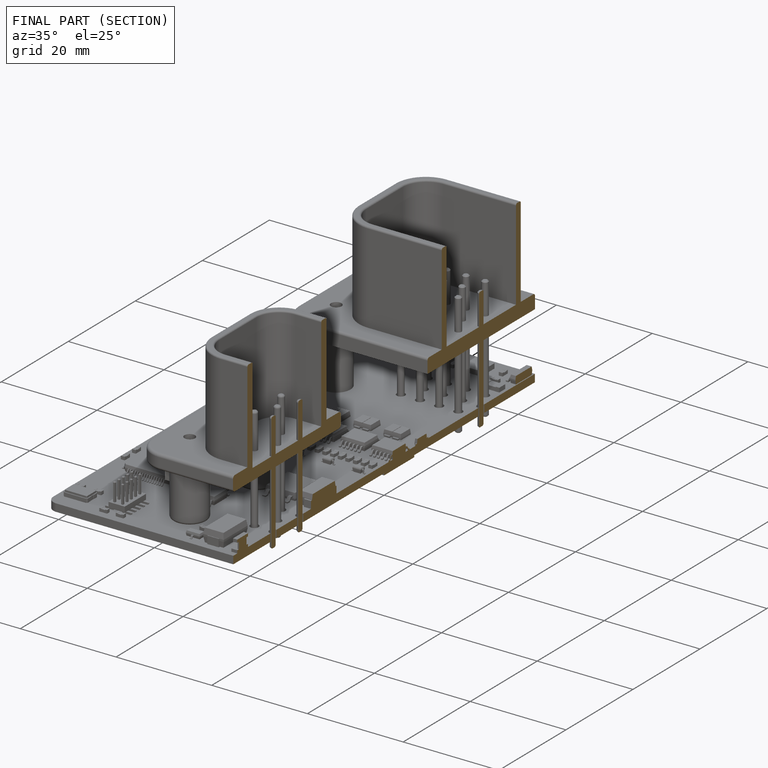
[diagram: finished part — half-section view (interior)]
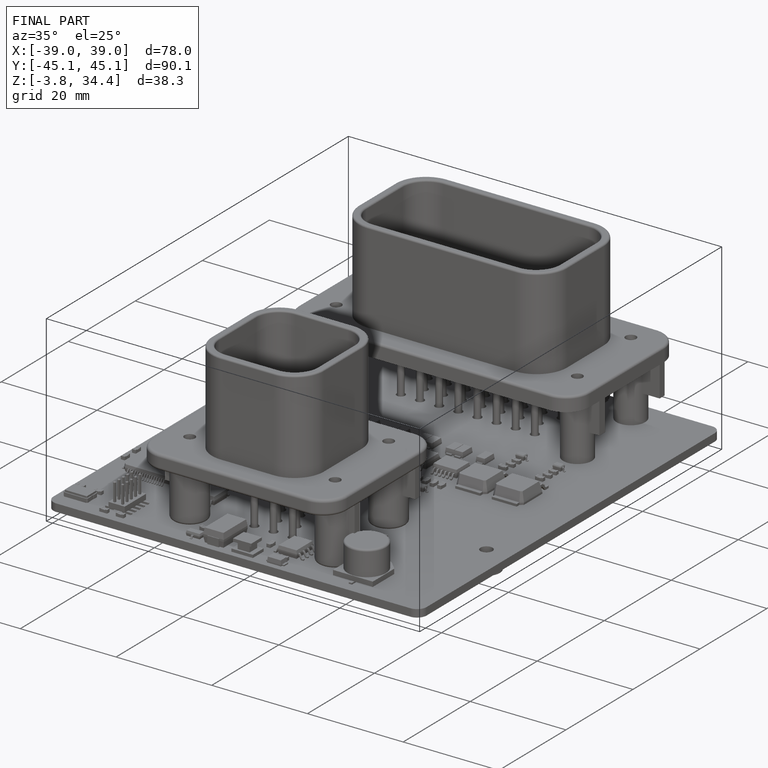
[diagram: finished part — iso view with bounding-box wireframe]
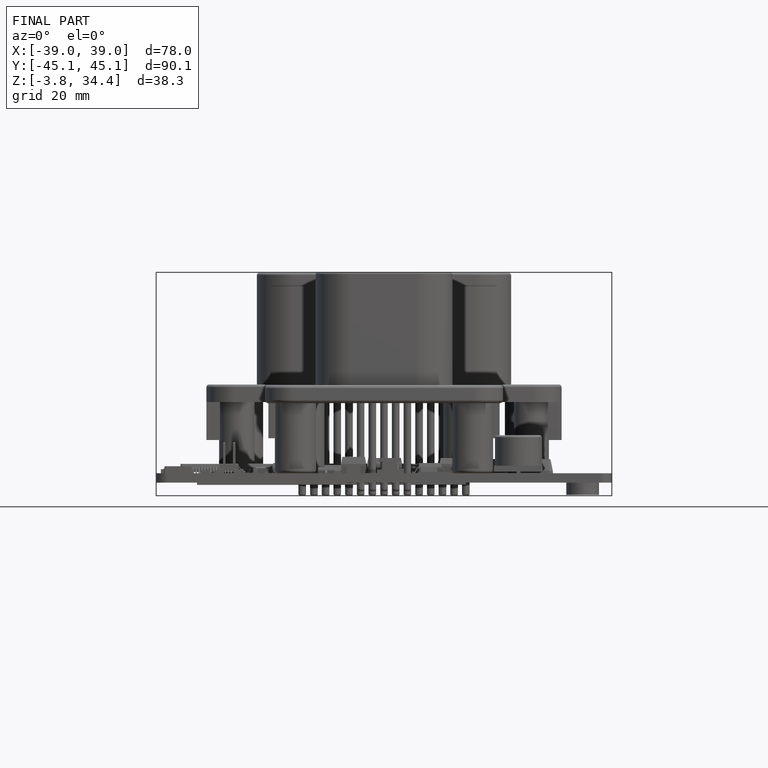
[diagram: finished part — front view with bounding-box wireframe]
